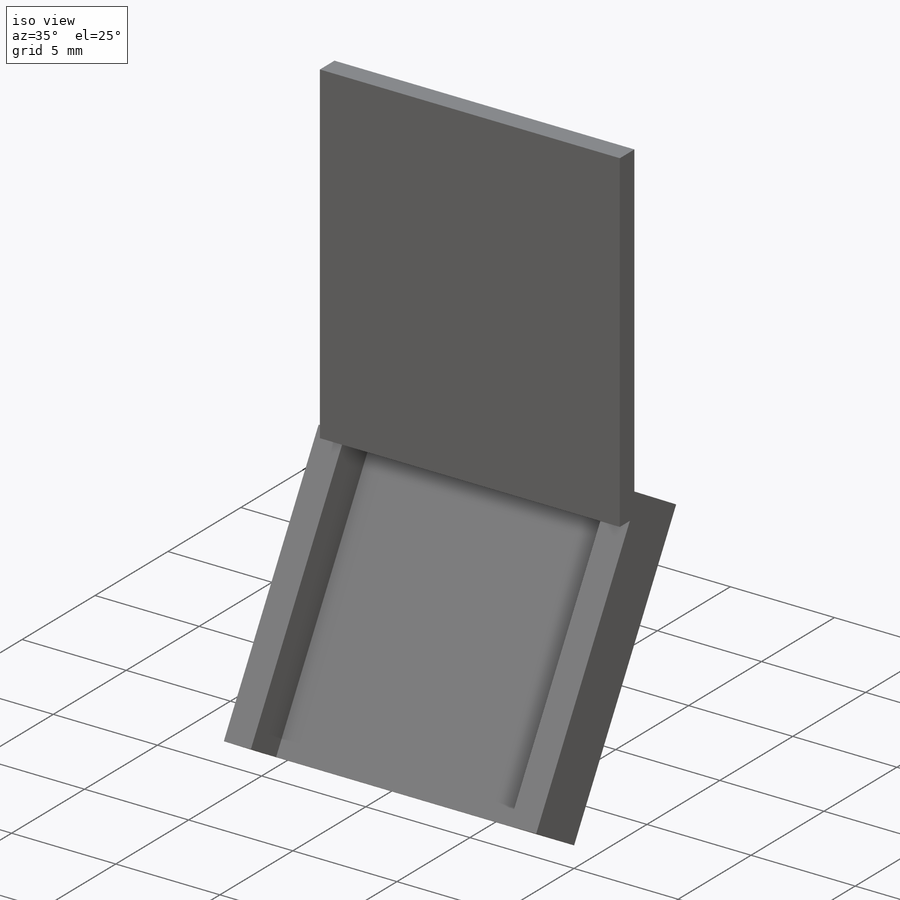
[diagram: iso view]
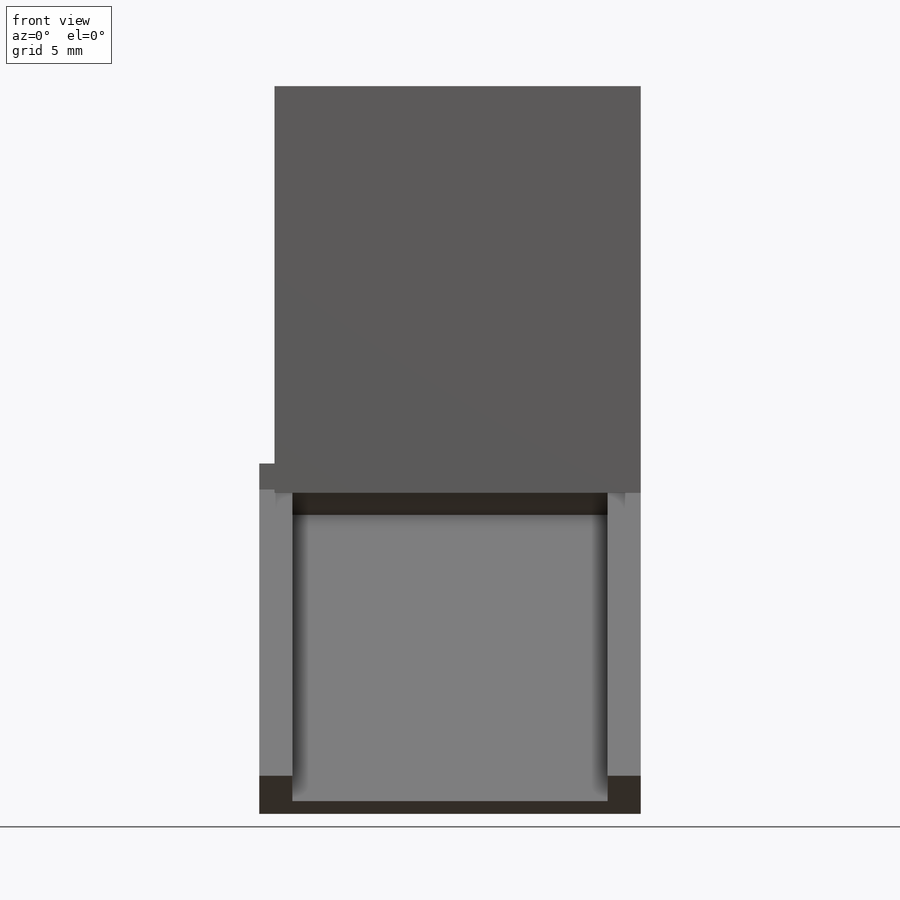
[diagram: front view]
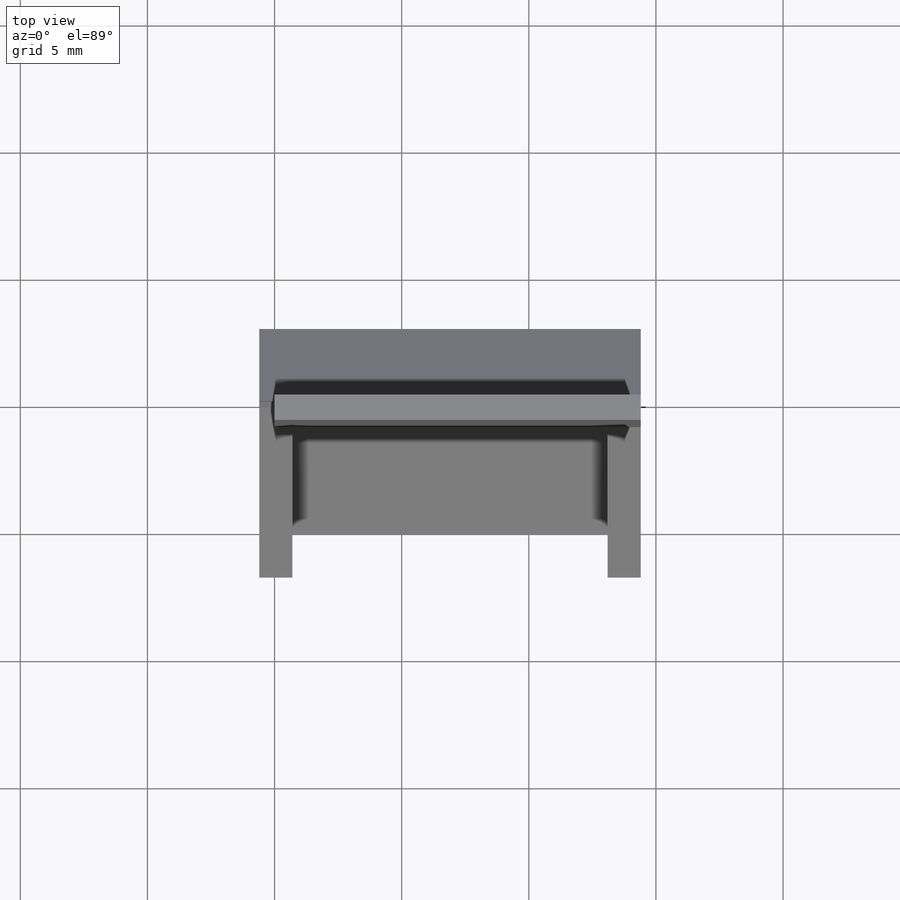
[diagram: top view]
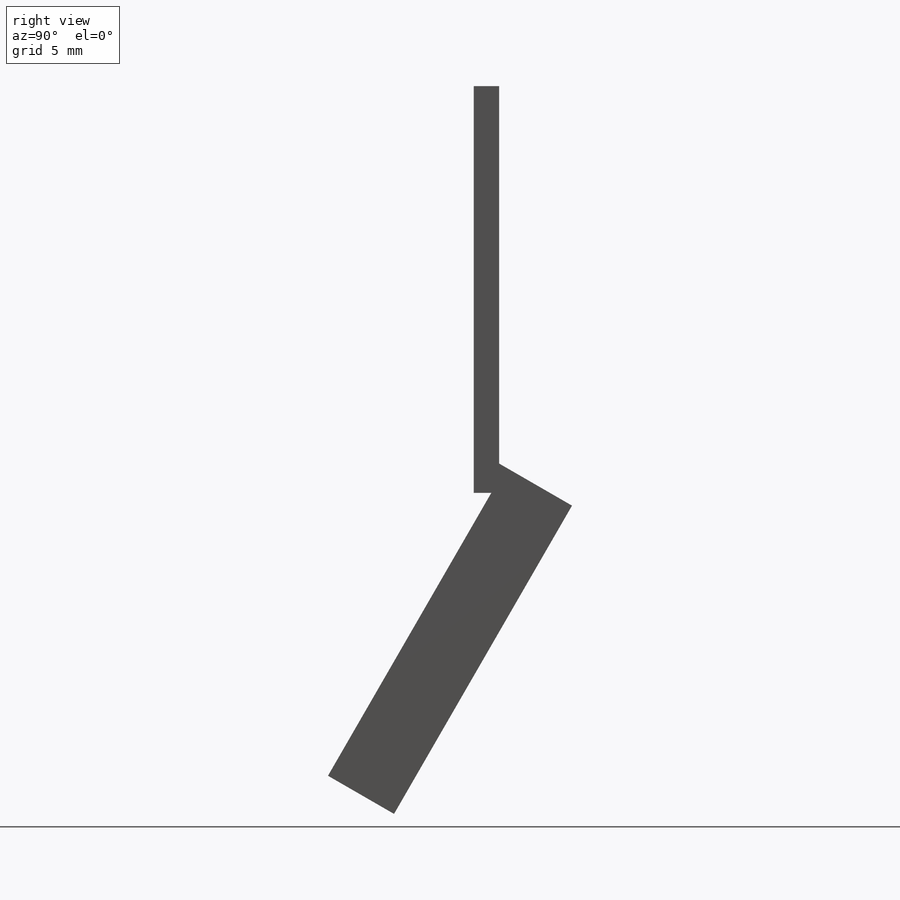
[diagram: right view]
SOLIDWORKS PART (.sldprt)
format: sldprt  version: not decoded by parser v0  size: 190,464 bytes
history: native  units: mm
features: plane x3, sketch x3, extrude x3, material x1 (+10 scaffold rows collapsed)
feature tree (20):
  scaffold x10  (default folders/planes/origin — collapsed)
  material  "ABS"
  plane  "Ebene vorne"
  plane  "Ebene oben"
  plane  "Ebene rechts"
  sketch  "Skizze1"  dims[D1=14.4mm D2=16.0mm]
  extrude  "Aufsatz-Linear austragen1"  Depth=1mm
  sketch  "Skizze4"  dims[c1.D1=~12.431715mm c2.D1=45.0deg c2.D2=~27.670232mm c3.D2=45.0deg c3.D3=~12.431715mm c4.D3=30.0deg c4.D4=14.0mm c4.D5=14.0mm c4.D1=1.0mm c4.D2=~13.321467mm c5.D2=45.0deg c6.D2=14.0mm c6.D4=14.0mm c6.D5=3.0mm c6.D6=1.0mm]
  extrude  "Aufsatz-Linear austragen4"  Depth=15mm
  sketch  "Skizze9"  dims[c1.D1=1.1mm c1.D2=1.3mm c2.D1=1.3mm]
  extrude  "Aufsatz-Linear austragen5"  Depth=2mm
decode coverage: 6 of 6 modeling features carry decoded parameters
note: ~ marks probable driven/reference dimensions
note: suppression state not decoded; provenance and decode notes live in map.json
